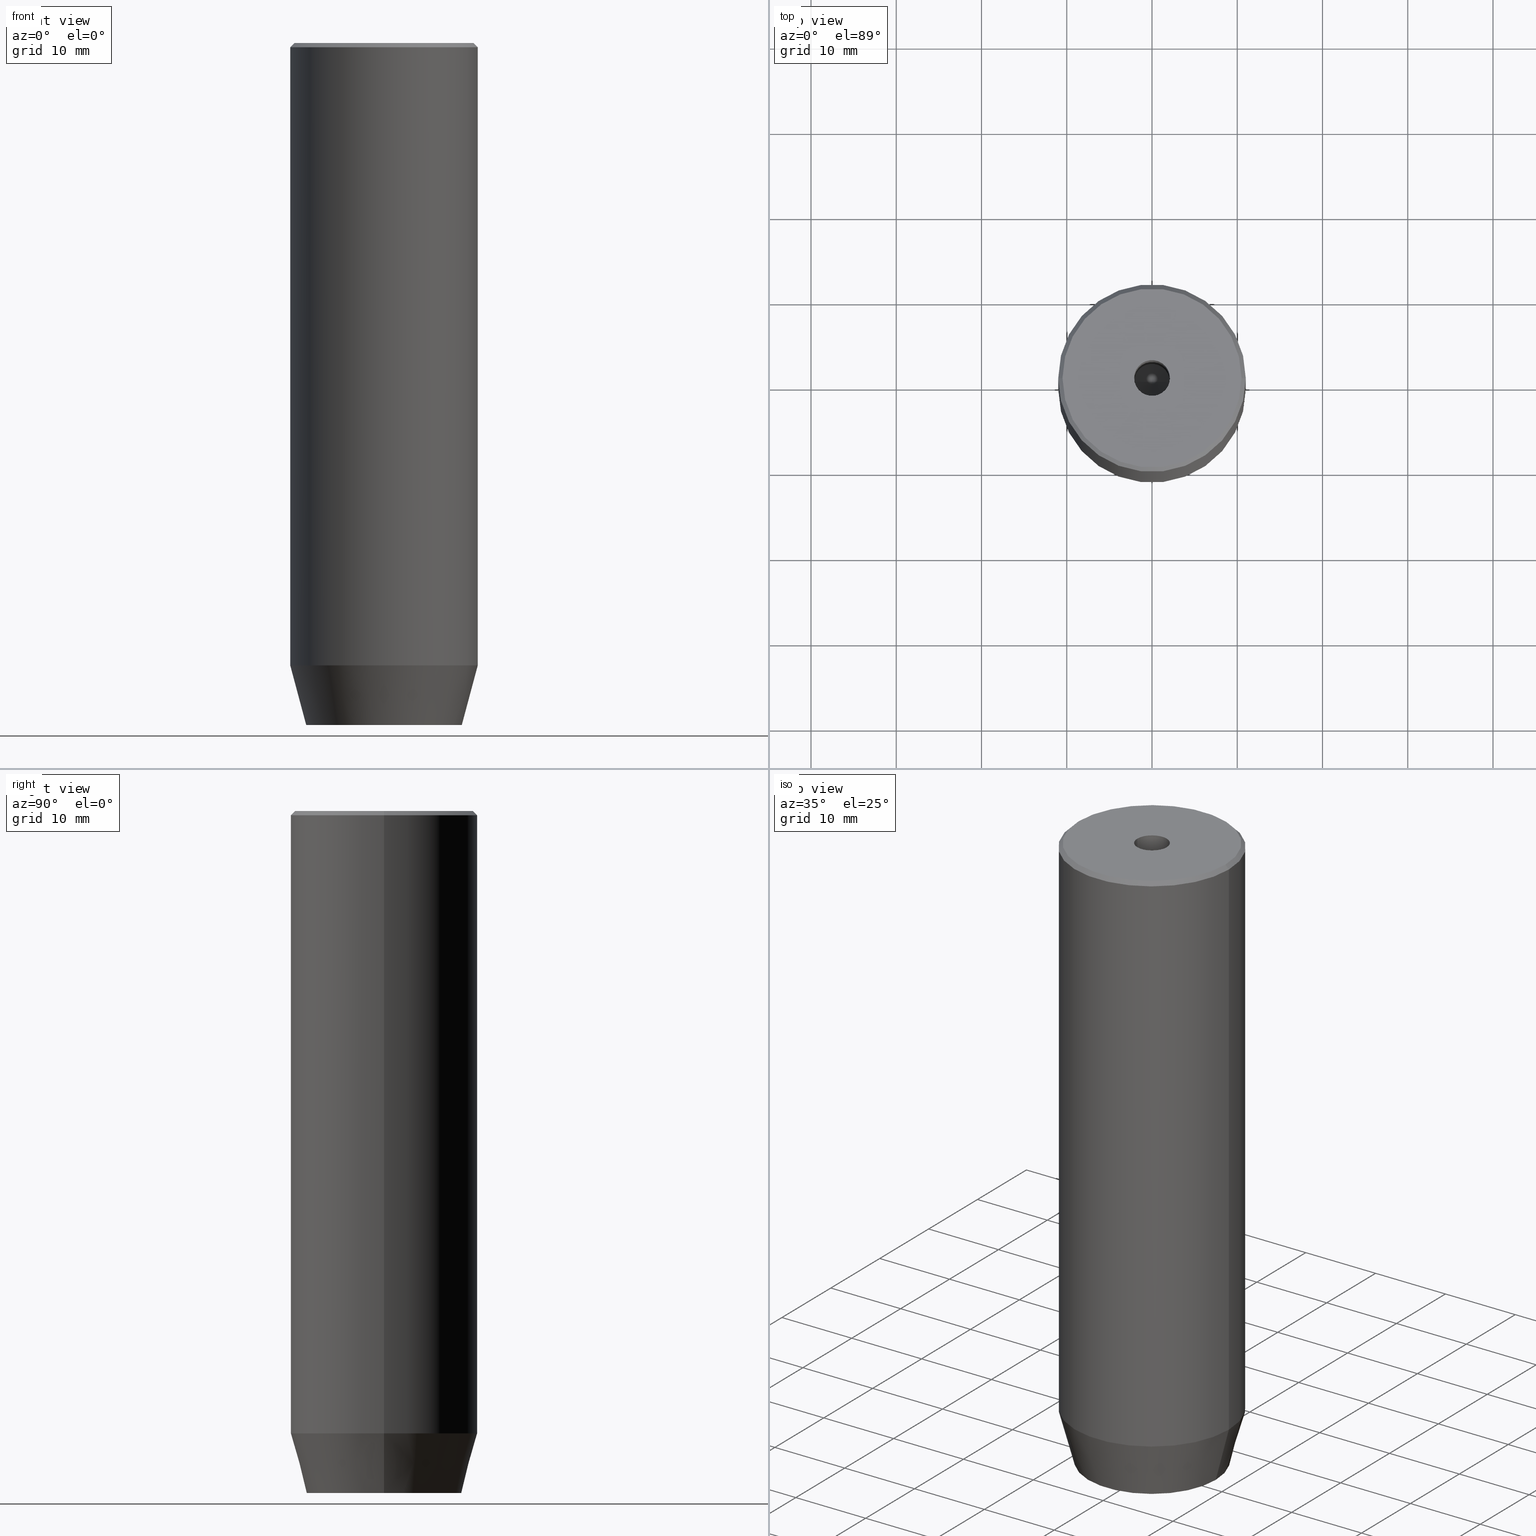
[diagram: canonical four-view strip — front | top / right | iso, engineering-drawing reading convention]
A machine part, canonical four-view strip (front | top / right | iso — engineering-drawing reading convention). The complete STEP part file that produces these views, byte-faithful:
ISO-10303-21;
HEADER;
FILE_DESCRIPTION (( 'STEP AP203' ),
    '1' );
FILE_NAME ('3adf.STEP',
    '2024-01-02T19:02:19',
    ( '' ),
    ( '' ),
    'SwSTEP 2.0',
    'SolidWorks 2019',
    '' );
FILE_SCHEMA (( 'CONFIG_CONTROL_DESIGN' ));
ENDSEC;

DATA;
#1 = ORIENTED_EDGE ( 'NONE', *, *, #334, .F. ) ;
#2 = CARTESIAN_POINT ( 'NONE',  ( -10.50000000000000178, 0.000000000000000000, 0.000000000000000000 ) ) ;
#3 = ORIENTED_EDGE ( 'NONE', *, *, #281, .T. ) ;
#4 = LINE ( 'NONE', #180, #386 ) ;
#5 = CC_DESIGN_DATE_AND_TIME_ASSIGNMENT ( #30, #352, ( #454 ) ) ;
#6 = PLANE ( 'NONE',  #464 ) ;
#7 = CARTESIAN_POINT ( 'NONE',  ( 9.124355652982137244, 0.000000000000000000, -80.00000000000001421 ) ) ;
#8 = DIRECTION ( 'NONE',  ( 0.2588190451025209060, 0.000000000000000000, 0.9659258262890682012 ) ) ;
#9 = AXIS2_PLACEMENT_3D ( 'NONE', #279, #333, #516 ) ;
#10 = DIRECTION ( 'NONE',  ( 1.000000000000000000, 0.000000000000000000, 0.000000000000000000 ) ) ;
#11 = ORIENTED_EDGE ( 'NONE', *, *, #204, .F. ) ;
#12 = CARTESIAN_POINT ( 'NONE',  ( 2.099999999999998757, 0.000000000000000000, -1.990051048614449116E-16 ) ) ;
#13 = ADVANCED_FACE ( 'NONE', ( #119 ), #336, .F. ) ;
#14 = EDGE_CURVE ( 'NONE', #158, #245, #70, .T. ) ;
#15 = CARTESIAN_POINT ( 'NONE',  ( 2.000000000000000444, 3.464101615137754386, -77.20000000000001705 ) ) ;
#16 = FACE_OUTER_BOUND ( 'NONE', #358, .T. ) ;
#17 = VERTEX_POINT ( 'NONE', #396 ) ;
#18 = FACE_OUTER_BOUND ( 'NONE', #342, .T. ) ;
#19 = APPLICATION_PROTOCOL_DEFINITION ( 'international standard', 'config_control_design', 1994, #404 ) ;
#20 = DIRECTION ( 'NONE',  ( -0.000000000000000000, -0.000000000000000000, -1.000000000000000000 ) ) ;
#21 = DIRECTION ( 'NONE',  ( -0.000000000000000000, -0.000000000000000000, 1.000000000000000000 ) ) ;
#22 = EDGE_CURVE ( 'NONE', #160, #135, #353, .T. ) ;
#23 = COORDINATED_UNIVERSAL_TIME_OFFSET ( 1, 0, .AHEAD. ) ;
#24 = ORIENTED_EDGE ( 'NONE', *, *, #563, .F. ) ;
#25 = AXIS2_PLACEMENT_3D ( 'NONE', #275, #90, #215 ) ;
#26 = EDGE_LOOP ( 'NONE', ( #503, #431, #478, #232, #529, #328 ) ) ;
#27 = DATE_TIME_ROLE ( 'creation_date' ) ;
#28 = EDGE_LOOP ( 'NONE', ( #35, #32, #303, #147 ) ) ;
#29 = VERTEX_POINT ( 'NONE', #75 ) ;
#30 = DATE_AND_TIME ( #343, #491 ) ;
#31 = CIRCLE ( 'NONE', #217, 2.099999999999998757 ) ;
#32 = ORIENTED_EDGE ( 'NONE', *, *, #488, .F. ) ;
#33 = CC_DESIGN_APPROVAL ( #266, ( #249 ) ) ;
#34 = CARTESIAN_POINT ( 'NONE',  ( 0.000000000000000000, 0.000000000000000000, 0.000000000000000000 ) ) ;
#35 = ORIENTED_EDGE ( 'NONE', *, *, #253, .T. ) ;
#36 = CARTESIAN_POINT ( 'NONE',  ( 0.000000000000000000, 0.000000000000000000, -0.4999999999999935052 ) ) ;
#37 = CYLINDRICAL_SURFACE ( 'NONE', #292, 11.00000000000000000 ) ;
#38 = CARTESIAN_POINT ( 'NONE',  ( 0.000000000000000000, 0.000000000000000000, 0.000000000000000000 ) ) ;
#39 = CARTESIAN_POINT ( 'NONE',  ( 2.099999999999995648, 0.000000000000000000, -25.00000000000000000 ) ) ;
#40 = ADVANCED_FACE ( 'NONE', ( #41 ), #177, .F. ) ;
#41 = FACE_OUTER_BOUND ( 'NONE', #382, .T. ) ;
#42 = LOCAL_TIME ( 20, 2, 19.00000000000000000, #519 ) ;
#43 = DIRECTION ( 'NONE',  ( -0.000000000000000000, -0.000000000000000000, 1.000000000000000000 ) ) ;
#44 = EDGE_CURVE ( 'NONE', #545, #187, #167, .T. ) ;
#45 = CARTESIAN_POINT ( 'NONE',  ( 2.099999999999995648, 0.000000000000000000, -25.00000000000000000 ) ) ;
#46 = ORIENTED_EDGE ( 'NONE', *, *, #357, .T. ) ;
#47 = DIRECTION ( 'NONE',  ( -0.7071067811865500152, 0.000000000000000000, -0.7071067811865451302 ) ) ;
#48 = DIRECTION ( 'NONE',  ( -0.8660254037844384856, 0.5000000000000002220, 0.000000000000000000 ) ) ;
#49 = EDGE_LOOP ( 'NONE', ( #24, #195, #154, #309 ) ) ;
#50 = DIRECTION ( 'NONE',  ( -0.000000000000000000, -0.000000000000000000, 1.000000000000000000 ) ) ;
#51 =( NAMED_UNIT ( * ) SI_UNIT ( $, .STERADIAN. ) SOLID_ANGLE_UNIT ( ) );
#52 = AXIS2_PLACEMENT_3D ( 'NONE', #224, #43, #500 ) ;
#53 = LINE ( 'NONE', #230, #360 ) ;
#54 = AXIS2_PLACEMENT_3D ( 'NONE', #522, #480, #369 ) ;
#55 = CARTESIAN_POINT ( 'NONE',  ( 0.000000000000000000, 0.000000000000000000, 0.000000000000000000 ) ) ;
#56 = DIRECTION ( 'NONE',  ( 1.000000000000000000, 0.000000000000000000, 0.000000000000000000 ) ) ;
#57 = ORIENTED_EDGE ( 'NONE', *, *, #450, .F. ) ;
#58 = DIRECTION ( 'NONE',  ( -0.000000000000000000, -0.000000000000000000, 1.000000000000000000 ) ) ;
#59 = EDGE_CURVE ( 'NONE', #158, #295, #98, .T. ) ;
#60 = DIRECTION ( 'NONE',  ( -0.000000000000000000, -0.000000000000000000, 1.000000000000000000 ) ) ;
#61 = AXIS2_PLACEMENT_3D ( 'NONE', #242, #60, #558 ) ;
#62 = EDGE_CURVE ( 'NONE', #418, #158, #344, .T. ) ;
#63 = ORIENTED_EDGE ( 'NONE', *, *, #471, .F. ) ;
#64 = ORIENTED_EDGE ( 'NONE', *, *, #79, .F. ) ;
#65 = ORIENTED_EDGE ( 'NONE', *, *, #379, .T. ) ;
#66 = ADVANCED_FACE ( 'NONE', ( #494 ), #206, .T. ) ;
#67 = VECTOR ( 'NONE', #20, 1000.000000000000000 ) ;
#68 = LOCAL_TIME ( 20, 2, 19.00000000000000000, #23 ) ;
#69 = AXIS2_PLACEMENT_3D ( 'NONE', #463, #546, #314 ) ;
#70 = LINE ( 'NONE', #399, #581 ) ;
#71 = PLANE ( 'NONE',  #585 ) ;
#72 = ORIENTED_EDGE ( 'NONE', *, *, #471, .T. ) ;
#73 = EDGE_LOOP ( 'NONE', ( #374, #184, #526, #86 ) ) ;
#74 = EDGE_CURVE ( 'NONE', #160, #545, #442, .T. ) ;
#75 = CARTESIAN_POINT ( 'NONE',  ( -11.00000000000000000, 1.347111479062088405E-15, -0.4999999999999935052 ) ) ;
#76 = SHAPE_DEFINITION_REPRESENTATION ( #346, #489 ) ;
#77 = LINE ( 'NONE', #540, #120 ) ;
#78 = CARTESIAN_POINT ( 'NONE',  ( -2.000000000000000000, 3.464101615137754830, -77.20000000000001705 ) ) ;
#79 = EDGE_CURVE ( 'NONE', #521, #411, #322, .T. ) ;
#80 = VERTEX_POINT ( 'NONE', #368 ) ;
#81 = CARTESIAN_POINT ( 'NONE',  ( 2.000000000000000888, -3.464101615137754386, -77.20000000000001705 ) ) ;
#82 = EDGE_CURVE ( 'NONE', #561, #579, #96, .T. ) ;
#83 = DIRECTION ( 'NONE',  ( -0.000000000000000000, -0.000000000000000000, 1.000000000000000000 ) ) ;
#84 = VECTOR ( 'NONE', #47, 1000.000000000000114 ) ;
#85 = VECTOR ( 'NONE', #355, 1000.000000000000000 ) ;
#86 = ORIENTED_EDGE ( 'NONE', *, *, #14, .F. ) ;
#87 = PLANE ( 'NONE',  #25 ) ;
#88 = DIRECTION ( 'NONE',  ( -0.000000000000000000, -0.000000000000000000, 1.000000000000000000 ) ) ;
#89 = VERTEX_POINT ( 'NONE', #287 ) ;
#90 = DIRECTION ( 'NONE',  ( 0.5000000000000001110, 0.8660254037844385966, -0.000000000000000000 ) ) ;
#91 = LINE ( 'NONE', #325, #302 ) ;
#92 = CARTESIAN_POINT ( 'NONE',  ( -11.00000000000000000, 1.347111479062088405E-15, 0.000000000000000000 ) ) ;
#93 = ORIENTED_EDGE ( 'NONE', *, *, #281, .F. ) ;
#94 = CARTESIAN_POINT ( 'NONE',  ( 0.000000000000000000, 0.000000000000000000, -80.00000000000001421 ) ) ;
#95 = DIRECTION ( 'NONE',  ( 0.8660254037844385966, -0.5000000000000001110, 0.000000000000000000 ) ) ;
#96 = LINE ( 'NONE', #101, #248 ) ;
#97 = ORIENTED_EDGE ( 'NONE', *, *, #493, .T. ) ;
#98 = CIRCLE ( 'NONE', #564, 2.099999999999995648 ) ;
#99 = CONICAL_SURFACE ( 'NONE', #388, 2.099999999999995648, 1.029744258676651647 ) ;
#100 = APPROVAL_DATE_TIME ( #413, #455 ) ;
#101 = CARTESIAN_POINT ( 'NONE',  ( 4.000000000000000000, 0.000000000000000000, -77.20000000000001705 ) ) ;
#102 =( LENGTH_UNIT ( ) NAMED_UNIT ( * ) SI_UNIT ( .MILLI., .METRE. ) );
#103 = CARTESIAN_POINT ( 'NONE',  ( 10.50000000000000178, 1.285879139104721028E-15, 0.000000000000000000 ) ) ;
#104 = ORIENTED_EDGE ( 'NONE', *, *, #289, .T. ) ;
#105 = CARTESIAN_POINT ( 'NONE',  ( 0.000000000000000000, 0.000000000000000000, 0.000000000000000000 ) ) ;
#106 = ADVANCED_FACE ( 'NONE', ( #191 ), #486, .T. ) ;
#107 = DIRECTION ( 'NONE',  ( -1.000000000000000000, 0.000000000000000000, 0.000000000000000000 ) ) ;
#108 = DIRECTION ( 'NONE',  ( 1.000000000000000000, 0.000000000000000000, 0.000000000000000000 ) ) ;
#109 = VECTOR ( 'NONE', #235, 1000.000000000000000 ) ;
#110 = CALENDAR_DATE ( 2024, 2, 1 ) ;
#111 = ORIENTED_EDGE ( 'NONE', *, *, #449, .F. ) ;
#112 = CARTESIAN_POINT ( 'NONE',  ( 11.00000000000000000, 0.000000000000000000, -0.4999999999999935052 ) ) ;
#113 = PERSON_AND_ORGANIZATION ( #470, #327 ) ;
#114 = EDGE_CURVE ( 'NONE', #164, #29, #414, .T. ) ;
#115 = ADVANCED_FACE ( 'NONE', ( #16 ), #189, .F. ) ;
#116 = DIRECTION ( 'NONE',  ( 1.000000000000000000, 0.000000000000000000, 0.000000000000000000 ) ) ;
#117 = PERSON_AND_ORGANIZATION ( #470, #327 ) ;
#118 = PRODUCT ( '3adf', '3adf', '', ( #151 ) ) ;
#119 = FACE_OUTER_BOUND ( 'NONE', #331, .T. ) ;
#120 = VECTOR ( 'NONE', #8, 1000.000000000000000 ) ;
#121 = ORIENTED_EDGE ( 'NONE', *, *, #320, .T. ) ;
#122 = EDGE_CURVE ( 'NONE', #428, #164, #128, .T. ) ;
#123 = DIRECTION ( 'NONE',  ( -0.8660254037844385966, -0.4999999999999999445, 0.000000000000000000 ) ) ;
#124 = ORIENTED_EDGE ( 'NONE', *, *, #253, .F. ) ;
#125 = ADVANCED_FACE ( 'NONE', ( #363, #237 ), #6, .T. ) ;
#126 = DIRECTION ( 'NONE',  ( 0.8571673007021108903, 0.000000000000000000, 0.5150380749100565980 ) ) ;
#127 = DIRECTION ( 'NONE',  ( 1.000000000000000000, 0.000000000000000000, 0.000000000000000000 ) ) ;
#128 = CIRCLE ( 'NONE', #61, 11.00000000000000000 ) ;
#129 = APPROVAL_PERSON_ORGANIZATION ( #337, #266, #426 ) ;
#130 = DIRECTION ( 'NONE',  ( 0.5000000000000003331, -0.8660254037844385966, 0.000000000000000000 ) ) ;
#131 = CARTESIAN_POINT ( 'NONE',  ( 4.000000000000000000, -2.309401076758502480, -80.00000000000001421 ) ) ;
#132 = DIRECTION ( 'NONE',  ( -0.000000000000000000, -0.000000000000000000, -1.000000000000000000 ) ) ;
#133 = EDGE_LOOP ( 'NONE', ( #401, #11 ) ) ;
#134 = FACE_OUTER_BOUND ( 'NONE', #73, .T. ) ;
#135 = VERTEX_POINT ( 'NONE', #277 ) ;
#136 = FACE_OUTER_BOUND ( 'NONE', #375, .T. ) ;
#137 = CC_DESIGN_DATE_AND_TIME_ASSIGNMENT ( #293, #27, ( #236 ) ) ;
#138 = CARTESIAN_POINT ( 'NONE',  ( -2.000000000000000000, 3.464101615137754830, -80.00000000000001421 ) ) ;
#139 = ORIENTED_EDGE ( 'NONE', *, *, #225, .T. ) ;
#140 = FACE_OUTER_BOUND ( 'NONE', #28, .T. ) ;
#141 = CARTESIAN_POINT ( 'NONE',  ( 4.000000000000000000, 2.309401076758503368, -80.00000000000001421 ) ) ;
#142 = LINE ( 'NONE', #446, #171 ) ;
#143 = CARTESIAN_POINT ( 'NONE',  ( -2.099999999999996980, 2.571758278209438013E-16, 0.000000000000000000 ) ) ;
#144 = LINE ( 'NONE', #150, #109 ) ;
#145 = EDGE_LOOP ( 'NONE', ( #238, #196, #298 ) ) ;
#146 = CARTESIAN_POINT ( 'NONE',  ( -4.000000000000000000, 0.000000000000000000, -77.20000000000001705 ) ) ;
#147 = ORIENTED_EDGE ( 'NONE', *, *, #421, .T. ) ;
#148 = VECTOR ( 'NONE', #537, 1000.000000000000114 ) ;
#149 = VECTOR ( 'NONE', #553, 1000.000000000000114 ) ;
#150 = CARTESIAN_POINT ( 'NONE',  ( 11.00000000000000000, 0.000000000000000000, 0.000000000000000000 ) ) ;
#151 = MECHANICAL_CONTEXT ( 'NONE', #404, 'mechanical' ) ;
#152 = VERTEX_POINT ( 'NONE', #228 ) ;
#153 = CC_DESIGN_PERSON_AND_ORGANIZATION_ASSIGNMENT ( #113, #571, ( #249 ) ) ;
#154 = ORIENTED_EDGE ( 'NONE', *, *, #244, .T. ) ;
#155 = CARTESIAN_POINT ( 'NONE',  ( -6.432287649943602629E-15, 0.000000000000000000, -26.26180729995787999 ) ) ;
#156 = VECTOR ( 'NONE', #443, 1000.000000000000000 ) ;
#157 = APPROVAL_DATE_TIME ( #376, #266 ) ;
#158 = VERTEX_POINT ( 'NONE', #39 ) ;
#159 = ORIENTED_EDGE ( 'NONE', *, *, #354, .T. ) ;
#160 = VERTEX_POINT ( 'NONE', #492 ) ;
#161 = FACE_OUTER_BOUND ( 'NONE', #317, .T. ) ;
#162 = AXIS2_PLACEMENT_3D ( 'NONE', #387, #532, #116 ) ;
#163 = VECTOR ( 'NONE', #48, 1000.000000000000114 ) ;
#164 = VERTEX_POINT ( 'NONE', #391 ) ;
#165 = DIRECTION ( 'NONE',  ( -0.5000000000000000000, 0.8660254037844387076, 0.000000000000000000 ) ) ;
#166 = DIRECTION ( 'NONE',  ( -0.000000000000000000, -0.000000000000000000, 1.000000000000000000 ) ) ;
#167 = LINE ( 'NONE', #138, #439 ) ;
#168 = ORIENTED_EDGE ( 'NONE', *, *, #273, .T. ) ;
#169 = ADVANCED_FACE ( 'NONE', ( #161 ), #71, .F. ) ;
#170 = CLOSED_SHELL ( 'NONE', ( #385, #419, #198, #106, #427, #125, #373, #462, #202, #66, #169, #115, #13, #40, #436, #294, #468, #527, #307 ) ) ;
#171 = VECTOR ( 'NONE', #132, 1000.000000000000000 ) ;
#172 = FACE_OUTER_BOUND ( 'NONE', #145, .T. ) ;
#173 = ORIENTED_EDGE ( 'NONE', *, *, #547, .T. ) ;
#174 = CYLINDRICAL_SURFACE ( 'NONE', #398, 2.099999999999996980 ) ;
#175 = DIRECTION ( 'NONE',  ( -0.000000000000000000, -0.000000000000000000, 1.000000000000000000 ) ) ;
#176 = DIRECTION ( 'NONE',  ( -1.000000000000000000, 0.000000000000000000, -0.000000000000000000 ) ) ;
#177 = PLANE ( 'NONE',  #326 ) ;
#178 = LINE ( 'NONE', #312, #156 ) ;
#179 = ORIENTED_EDGE ( 'NONE', *, *, #14, .T. ) ;
#180 = CARTESIAN_POINT ( 'NONE',  ( 4.000000000000000000, -2.309401076758502480, -77.20000000000001705 ) ) ;
#181 = CARTESIAN_POINT ( 'NONE',  ( 0.000000000000000000, 9.124355652982137244, -80.00000000000001421 ) ) ;
#182 = CONICAL_SURFACE ( 'NONE', #162, 11.00000000000000000, 0.2617993877991495744 ) ;
#183 = CIRCLE ( 'NONE', #582, 10.50000000000000178 ) ;
#184 = ORIENTED_EDGE ( 'NONE', *, *, #334, .T. ) ;
#185 = DIRECTION ( 'NONE',  ( 0.8660254037844385966, -0.5000000000000001110, 0.000000000000000000 ) ) ;
#186 = CARTESIAN_POINT ( 'NONE',  ( 4.000000000000000000, 2.309401076758503368, -77.20000000000001705 ) ) ;
#187 = VERTEX_POINT ( 'NONE', #383 ) ;
#188 = FACE_OUTER_BOUND ( 'NONE', #323, .T. ) ;
#189 = PLANE ( 'NONE',  #216 ) ;
#190 = CARTESIAN_POINT ( 'NONE',  ( -2.000000000000000888, -3.464101615137754386, -80.00000000000001421 ) ) ;
#191 = FACE_OUTER_BOUND ( 'NONE', #200, .T. ) ;
#192 = CIRCLE ( 'NONE', #573, 2.099999999999998757 ) ;
#193 = CC_DESIGN_SECURITY_CLASSIFICATION ( #454, ( #249 ) ) ;
#194 = LINE ( 'NONE', #15, #378 ) ;
#195 = ORIENTED_EDGE ( 'NONE', *, *, #241, .T. ) ;
#196 = ORIENTED_EDGE ( 'NONE', *, *, #62, .T. ) ;
#197 = CONICAL_SURFACE ( 'NONE', #301, 10.50000000000000178, 0.7853981633974517207 ) ;
#198 = ADVANCED_FACE ( 'NONE', ( #255 ), #197, .T. ) ;
#199 = VECTOR ( 'NONE', #420, 1000.000000000000000 ) ;
#200 = EDGE_LOOP ( 'NONE', ( #46, #425, #583, #205 ) ) ;
#201 = LINE ( 'NONE', #381, #535 ) ;
#202 = ADVANCED_FACE ( 'NONE', ( #440 ), #182, .T. ) ;
#203 = ORIENTED_EDGE ( 'NONE', *, *, #44, .F. ) ;
#204 = EDGE_CURVE ( 'NONE', #377, #245, #31, .T. ) ;
#205 = ORIENTED_EDGE ( 'NONE', *, *, #244, .F. ) ;
#206 = CONICAL_SURFACE ( 'NONE', #306, 10.50000000000000178, 0.7853981633974517207 ) ;
#207 = VECTOR ( 'NONE', #560, 1000.000000000000000 ) ;
#208 = ORIENTED_EDGE ( 'NONE', *, *, #79, .T. ) ;
#209 = DIRECTION ( 'NONE',  ( 0.8660254037844387076, 0.5000000000000001110, 0.000000000000000000 ) ) ;
#210 = DIRECTION ( 'NONE',  ( -0.000000000000000000, -0.000000000000000000, 1.000000000000000000 ) ) ;
#211 = ORIENTED_EDGE ( 'NONE', *, *, #421, .F. ) ;
#212 = DIRECTION ( 'NONE',  ( 0.000000000000000000, 0.000000000000000000, -1.000000000000000000 ) ) ;
#213 = EDGE_CURVE ( 'NONE', #411, #29, #341, .T. ) ;
#214 = CARTESIAN_POINT ( 'NONE',  ( 10.50000000000000178, 1.316495309083404815E-15, 0.000000000000000000 ) ) ;
#215 = DIRECTION ( 'NONE',  ( -0.8660254037844385966, 0.5000000000000001110, 0.000000000000000000 ) ) ;
#216 = AXIS2_PLACEMENT_3D ( 'NONE', #146, #107, #285 ) ;
#217 = AXIS2_PLACEMENT_3D ( 'NONE', #576, #166, #127 ) ;
#218 = VERTEX_POINT ( 'NONE', #433 ) ;
#219 = DIRECTION ( 'NONE',  ( -0.000000000000000000, -0.000000000000000000, -1.000000000000000000 ) ) ;
#220 = EDGE_CURVE ( 'NONE', #89, #545, #201, .T. ) ;
#221 = EDGE_CURVE ( 'NONE', #579, #257, #356, .T. ) ;
#222 = DIRECTION ( 'NONE',  ( 1.000000000000000000, 0.000000000000000000, 0.000000000000000000 ) ) ;
#223 = ORIENTED_EDGE ( 'NONE', *, *, #62, .F. ) ;
#224 = CARTESIAN_POINT ( 'NONE',  ( 0.000000000000000000, 0.000000000000000000, -25.00000000000000000 ) ) ;
#225 = EDGE_CURVE ( 'NONE', #295, #158, #251, .T. ) ;
#226 = CARTESIAN_POINT ( 'NONE',  ( 0.000000000000000000, 0.000000000000000000, -77.20000000000001705 ) ) ;
#227 = DIRECTION ( 'NONE',  ( -0.000000000000000000, -0.000000000000000000, 1.000000000000000000 ) ) ;
#228 = CARTESIAN_POINT ( 'NONE',  ( -10.50000000000000178, 0.000000000000000000, 0.000000000000000000 ) ) ;
#229 = CC_DESIGN_APPROVAL ( #497, ( #454 ) ) ;
#230 = CARTESIAN_POINT ( 'NONE',  ( 2.000000000000000888, -3.464101615137754386, -80.00000000000001421 ) ) ;
#231 = CALENDAR_DATE ( 2024, 2, 1 ) ;
#232 = ORIENTED_EDGE ( 'NONE', *, *, #221, .T. ) ;
#233 = APPROVAL_ROLE ( '' ) ;
#234 = FACE_OUTER_BOUND ( 'NONE', #247, .T. ) ;
#235 = DIRECTION ( 'NONE',  ( -0.000000000000000000, -0.000000000000000000, 1.000000000000000000 ) ) ;
#236 = PRODUCT_DEFINITION ( 'NEZN�M�', '', #249, #332 ) ;
#237 = FACE_OUTER_BOUND ( 'NONE', #437, .T. ) ;
#238 = ORIENTED_EDGE ( 'NONE', *, *, #547, .F. ) ;
#239 = DIRECTION ( 'NONE',  ( 1.000000000000000000, 0.000000000000000000, 0.000000000000000000 ) ) ;
#240 = APPLICATION_PROTOCOL_DEFINITION ( 'international standard', 'config_control_design', 1994, #243 ) ;
#241 = EDGE_CURVE ( 'NONE', #218, #506, #484, .T. ) ;
#242 = CARTESIAN_POINT ( 'NONE',  ( 0.000000000000000000, 0.000000000000000000, -73.00000000000001421 ) ) ;
#243 = APPLICATION_CONTEXT ( 'configuration controlled 3d designs of mechanical parts and assemblies' ) ;
#244 = EDGE_CURVE ( 'NONE', #506, #428, #77, .T. ) ;
#245 = VERTEX_POINT ( 'NONE', #12 ) ;
#246 = CARTESIAN_POINT ( 'NONE',  ( 11.00000000000000000, 0.000000000000000000, -73.00000000000001421 ) ) ;
#247 = EDGE_LOOP ( 'NONE', ( #223, #173, #139 ) ) ;
#248 = VECTOR ( 'NONE', #476, 1000.000000000000000 ) ;
#249 = PRODUCT_DEFINITION_FORMATION_WITH_SPECIFIED_SOURCE ( 'LIBOVOLN�', '', #118, .NOT_KNOWN. ) ;
#250 = SECURITY_CLASSIFICATION_LEVEL ( 'unclassified' ) ;
#251 = CIRCLE ( 'NONE', #52, 2.099999999999995648 ) ;
#252 = ORIENTED_EDGE ( 'NONE', *, *, #220, .T. ) ;
#253 = EDGE_CURVE ( 'NONE', #187, #554, #265, .T. ) ;
#254 = EDGE_LOOP ( 'NONE', ( #1, #340, #179, #121 ) ) ;
#255 = FACE_OUTER_BOUND ( 'NONE', #438, .T. ) ;
#256 = CC_DESIGN_PERSON_AND_ORGANIZATION_ASSIGNMENT ( #523, #525, ( #249 ) ) ;
#257 = VERTEX_POINT ( 'NONE', #276 ) ;
#258 = DIRECTION ( 'NONE',  ( -1.000000000000000000, 0.000000000000000000, 0.000000000000000000 ) ) ;
#259 = VECTOR ( 'NONE', #472, 1000.000000000000000 ) ;
#260 =( GEOMETRIC_REPRESENTATION_CONTEXT ( 3 ) GLOBAL_UNCERTAINTY_ASSIGNED_CONTEXT ( ( #481 ) ) GLOBAL_UNIT_ASSIGNED_CONTEXT ( ( #102, #417, #51 ) ) REPRESENTATION_CONTEXT ( 'NONE', 'WORKASPACE' ) );
#261 = DIRECTION ( 'NONE',  ( -1.000000000000000000, 0.000000000000000000, 0.000000000000000000 ) ) ;
#262 = MANIFOLD_SOLID_BREP ( 'Vrt�k z�vitn�ku pro M5 z�vit1', #170 ) ;
#263 = CARTESIAN_POINT ( 'NONE',  ( -2.000000000000000888, -3.464101615137754386, -77.20000000000001705 ) ) ;
#264 = VERTEX_POINT ( 'NONE', #131 ) ;
#265 = LINE ( 'NONE', #347, #430 ) ;
#266 = APPROVAL ( #565, 'NEUR�EN�' ) ;
#267 = APPROVAL_ROLE ( '' ) ;
#268 = DIRECTION ( 'NONE',  ( 1.000000000000000000, 0.000000000000000000, 0.000000000000000000 ) ) ;
#269 = CIRCLE ( 'NONE', #422, 9.124355652982137244 ) ;
#270 = DIRECTION ( 'NONE',  ( 1.000000000000000000, 0.000000000000000000, 0.000000000000000000 ) ) ;
#271 = DIRECTION ( 'NONE',  ( 0.000000000000000000, 0.000000000000000000, -1.000000000000000000 ) ) ;
#272 = DIRECTION ( 'NONE',  ( -0.000000000000000000, -0.000000000000000000, 1.000000000000000000 ) ) ;
#273 = EDGE_CURVE ( 'NONE', #29, #411, #329, .T. ) ;
#274 = LINE ( 'NONE', #460, #477 ) ;
#275 = CARTESIAN_POINT ( 'NONE',  ( 2.000000000000000444, 3.464101615137754386, -77.20000000000001705 ) ) ;
#276 = CARTESIAN_POINT ( 'NONE',  ( 4.336808689942017736E-16, -4.618802153517006737, -77.20000000000001705 ) ) ;
#277 = CARTESIAN_POINT ( 'NONE',  ( 0.000000000000000000, 4.618802153517006737, -77.20000000000001705 ) ) ;
#278 = AXIS2_PLACEMENT_3D ( 'NONE', #402, #409, #461 ) ;
#279 = CARTESIAN_POINT ( 'NONE',  ( 0.000000000000000000, 0.000000000000000000, -73.00000000000001421 ) ) ;
#280 = VECTOR ( 'NONE', #557, 1000.000000000000114 ) ;
#281 = EDGE_CURVE ( 'NONE', #17, #89, #496, .T. ) ;
#282 = EDGE_LOOP ( 'NONE', ( #64, #499, #159, #394 ) ) ;
#283 = DIRECTION ( 'NONE',  ( 1.000000000000000000, 0.000000000000000000, -0.000000000000000000 ) ) ;
#284 = PERSON_AND_ORGANIZATION_ROLE ( 'design_owner' ) ;
#285 = DIRECTION ( 'NONE',  ( 0.000000000000000000, 0.000000000000000000, 1.000000000000000000 ) ) ;
#286 = CARTESIAN_POINT ( 'NONE',  ( -4.000000000000000000, 2.309401076758503368, -80.00000000000001421 ) ) ;
#287 = CARTESIAN_POINT ( 'NONE',  ( -4.000000000000000000, -2.309401076758503368, -80.00000000000001421 ) ) ;
#288 = CARTESIAN_POINT ( 'NONE',  ( 0.000000000000000000, 0.000000000000000000, -25.00000000000000000 ) ) ;
#289 = EDGE_CURVE ( 'NONE', #579, #264, #4, .T. ) ;
#290 = ORIENTED_EDGE ( 'NONE', *, *, #44, .T. ) ;
#291 = CIRCLE ( 'NONE', #348, 11.00000000000000000 ) ;
#292 = AXIS2_PLACEMENT_3D ( 'NONE', #549, #88, #222 ) ;
#293 = DATE_AND_TIME ( #110, #42 ) ;
#294 = ADVANCED_FACE ( 'NONE', ( #140 ), #87, .F. ) ;
#295 = VERTEX_POINT ( 'NONE', #448 ) ;
#296 = DIRECTION ( 'NONE',  ( -0.000000000000000000, -0.000000000000000000, 1.000000000000000000 ) ) ;
#297 = CALENDAR_DATE ( 2024, 2, 1 ) ;
#298 = ORIENTED_EDGE ( 'NONE', *, *, #59, .T. ) ;
#299 = PERSON_AND_ORGANIZATION_ROLE ( 'classification_officer' ) ;
#300 = DIRECTION ( 'NONE',  ( -0.5000000000000003331, -0.8660254037844385966, 0.000000000000000000 ) ) ;
#301 = AXIS2_PLACEMENT_3D ( 'NONE', #445, #212, #258 ) ;
#302 = VECTOR ( 'NONE', #465, 1000.000000000000114 ) ;
#303 = ORIENTED_EDGE ( 'NONE', *, *, #586, .F. ) ;
#304 = ORIENTED_EDGE ( 'NONE', *, *, #213, .T. ) ;
#305 = DIRECTION ( 'NONE',  ( 0.000000000000000000, 0.000000000000000000, -1.000000000000000000 ) ) ;
#306 = AXIS2_PLACEMENT_3D ( 'NONE', #392, #305, #261 ) ;
#307 = ADVANCED_FACE ( 'NONE', ( #550 ), #174, .F. ) ;
#308 = LINE ( 'NONE', #263, #163 ) ;
#309 = ORIENTED_EDGE ( 'NONE', *, *, #338, .F. ) ;
#310 = CARTESIAN_POINT ( 'NONE',  ( 0.000000000000000000, 0.000000000000000000, -80.00000000000001421 ) ) ;
#311 = COORDINATED_UNIVERSAL_TIME_OFFSET ( 1, 0, .AHEAD. ) ;
#312 = CARTESIAN_POINT ( 'NONE',  ( 4.000000000000000000, 2.309401076758503368, -77.20000000000001705 ) ) ;
#313 = DIRECTION ( 'NONE',  ( 1.000000000000000000, 0.000000000000000000, 0.000000000000000000 ) ) ;
#314 = DIRECTION ( 'NONE',  ( 1.000000000000000000, 0.000000000000000000, 0.000000000000000000 ) ) ;
#315 = AXIS2_PLACEMENT_3D ( 'NONE', #479, #300, #485 ) ;
#316 = CARTESIAN_POINT ( 'NONE',  ( -4.000000000000000000, 0.000000000000000000, -77.20000000000001705 ) ) ;
#317 = EDGE_LOOP ( 'NONE', ( #290, #211, #365, #574 ) ) ;
#318 = CARTESIAN_POINT ( 'NONE',  ( -4.000000000000000000, -2.309401076758503368, -77.20000000000001705 ) ) ;
#319 = DIRECTION ( 'NONE',  ( 1.000000000000000000, 0.000000000000000000, 0.000000000000000000 ) ) ;
#320 = EDGE_CURVE ( 'NONE', #245, #377, #192, .T. ) ;
#321 = CARTESIAN_POINT ( 'NONE',  ( -11.00000000000000000, 1.347111479062088405E-15, -73.00000000000001421 ) ) ;
#322 = LINE ( 'NONE', #103, #149 ) ;
#323 = EDGE_LOOP ( 'NONE', ( #97, #559, #405, #524 ) ) ;
#324 = CARTESIAN_POINT ( 'NONE',  ( 4.000000000000000000, 0.000000000000000000, -77.20000000000001705 ) ) ;
#325 = CARTESIAN_POINT ( 'NONE',  ( -2.099999999999995648, 2.571758278209436040E-16, -25.00000000000000000 ) ) ;
#326 = AXIS2_PLACEMENT_3D ( 'NONE', #459, #130, #502 ) ;
#327 = ORGANIZATION ( 'NEUR�EN�', 'NEUR�EN�', '' ) ;
#328 = ORIENTED_EDGE ( 'NONE', *, *, #449, .T. ) ;
#329 = CIRCLE ( 'NONE', #278, 11.00000000000000000 ) ;
#330 = LINE ( 'NONE', #190, #280 ) ;
#331 = EDGE_LOOP ( 'NONE', ( #531, #93, #57, #72 ) ) ;
#332 = DESIGN_CONTEXT ( 'detailed design', #243, 'design' ) ;
#333 = DIRECTION ( 'NONE',  ( -0.000000000000000000, -0.000000000000000000, 1.000000000000000000 ) ) ;
#334 = EDGE_CURVE ( 'NONE', #295, #377, #458, .T. ) ;
#335 = CC_DESIGN_PERSON_AND_ORGANIZATION_ASSIGNMENT ( #474, #284, ( #118 ) ) ;
#336 = PLANE ( 'NONE',  #315 ) ;
#337 = PERSON_AND_ORGANIZATION ( #470, #327 ) ;
#338 = EDGE_CURVE ( 'NONE', #164, #428, #291, .T. ) ;
#339 = ORIENTED_EDGE ( 'NONE', *, *, #221, .F. ) ;
#340 = ORIENTED_EDGE ( 'NONE', *, *, #59, .F. ) ;
#341 = CIRCLE ( 'NONE', #370, 11.00000000000000000 ) ;
#342 = EDGE_LOOP ( 'NONE', ( #384, #389, #168, #424 ) ) ;
#343 = CALENDAR_DATE ( 2024, 2, 1 ) ;
#344 = LINE ( 'NONE', #45, #512 ) ;
#345 = CARTESIAN_POINT ( 'NONE',  ( -2.000000000000000000, 3.464101615137754830, -77.20000000000001705 ) ) ;
#346 = PRODUCT_DEFINITION_SHAPE ( 'NONE', 'NONE',  #236 ) ;
#347 = CARTESIAN_POINT ( 'NONE',  ( 2.000000000000000444, 3.464101615137754386, -80.00000000000001421 ) ) ;
#348 = AXIS2_PLACEMENT_3D ( 'NONE', #584, #452, #313 ) ;
#349 = AXIS2_PLACEMENT_3D ( 'NONE', #350, #539, #498 ) ;
#350 = CARTESIAN_POINT ( 'NONE',  ( 0.000000000000000000, 0.000000000000000000, -25.00000000000000000 ) ) ;
#351 = PLANE ( 'NONE',  #69 ) ;
#352 = DATE_TIME_ROLE ( 'classification_date' ) ;
#353 = LINE ( 'NONE', #78, #475 ) ;
#354 = EDGE_CURVE ( 'NONE', #152, #29, #359, .T. ) ;
#355 = DIRECTION ( 'NONE',  ( 0.000000000000000000, 1.000000000000000000, 0.000000000000000000 ) ) ;
#356 = LINE ( 'NONE', #81, #148 ) ;
#357 = EDGE_CURVE ( 'NONE', #506, #218, #269, .T. ) ;
#358 = EDGE_LOOP ( 'NONE', ( #252, #569, #111, #3 ) ) ;
#359 = LINE ( 'NONE', #2, #84 ) ;
#360 = VECTOR ( 'NONE', #412, 1000.000000000000114 ) ;
#361 = COORDINATED_UNIVERSAL_TIME_OFFSET ( 1, 0, .AHEAD. ) ;
#362 = LOCAL_TIME ( 20, 2, 19.00000000000000000, #311 ) ;
#363 = FACE_BOUND ( 'NONE', #444, .T. ) ;
#364 = DIRECTION ( 'NONE',  ( -0.000000000000000000, -0.000000000000000000, -1.000000000000000000 ) ) ;
#365 = ORIENTED_EDGE ( 'NONE', *, *, #22, .F. ) ;
#366 = PLANE ( 'NONE',  #423 ) ;
#367 = PERSON_AND_ORGANIZATION ( #470, #327 ) ;
#368 = CARTESIAN_POINT ( 'NONE',  ( 4.336808689942017736E-16, -4.618802153517006737, -80.00000000000001421 ) ) ;
#369 = DIRECTION ( 'NONE',  ( 1.000000000000000000, 0.000000000000000000, 0.000000000000000000 ) ) ;
#370 = AXIS2_PLACEMENT_3D ( 'NONE', #36, #395, #580 ) ;
#371 = AXIS2_PLACEMENT_3D ( 'NONE', #105, #58, #56 ) ;
#372 = CYLINDRICAL_SURFACE ( 'NONE', #536, 2.099999999999996980 ) ;
#373 = ADVANCED_FACE ( 'NONE', ( #510, #136 ), #351, .T. ) ;
#374 = ORIENTED_EDGE ( 'NONE', *, *, #225, .F. ) ;
#375 = EDGE_LOOP ( 'NONE', ( #473, #517 ) ) ;
#376 = DATE_AND_TIME ( #297, #68 ) ;
#377 = VERTEX_POINT ( 'NONE', #504 ) ;
#378 = VECTOR ( 'NONE', #95, 1000.000000000000000 ) ;
#379 = EDGE_CURVE ( 'NONE', #264, #80, #53, .T. ) ;
#380 = ORIENTED_EDGE ( 'NONE', *, *, #379, .F. ) ;
#381 = CARTESIAN_POINT ( 'NONE',  ( -4.000000000000000000, 0.000000000000000000, -80.00000000000001421 ) ) ;
#382 = EDGE_LOOP ( 'NONE', ( #65, #63, #339, #104 ) ) ;
#383 = CARTESIAN_POINT ( 'NONE',  ( 0.000000000000000000, 4.618802153517006737, -80.00000000000001421 ) ) ;
#384 = ORIENTED_EDGE ( 'NONE', *, *, #122, .T. ) ;
#385 = ADVANCED_FACE ( 'NONE', ( #134 ), #372, .F. ) ;
#386 = VECTOR ( 'NONE', #364, 1000.000000000000000 ) ;
#387 = CARTESIAN_POINT ( 'NONE',  ( 0.000000000000000000, 0.000000000000000000, -73.00000000000001421 ) ) ;
#388 = AXIS2_PLACEMENT_3D ( 'NONE', #288, #21, #108 ) ;
#389 = ORIENTED_EDGE ( 'NONE', *, *, #114, .T. ) ;
#390 = EDGE_CURVE ( 'NONE', #521, #152, #530, .T. ) ;
#391 = CARTESIAN_POINT ( 'NONE',  ( -11.00000000000000000, 1.347111479062088405E-15, -73.00000000000001421 ) ) ;
#392 = CARTESIAN_POINT ( 'NONE',  ( 0.000000000000000000, 0.000000000000000000, 0.000000000000000000 ) ) ;
#393 = DIRECTION ( 'NONE',  ( 1.000000000000000000, 0.000000000000000000, 0.000000000000000000 ) ) ;
#394 = ORIENTED_EDGE ( 'NONE', *, *, #213, .F. ) ;
#395 = DIRECTION ( 'NONE',  ( 0.000000000000000000, 0.000000000000000000, -1.000000000000000000 ) ) ;
#396 = CARTESIAN_POINT ( 'NONE',  ( -4.000000000000000000, -2.309401076758503368, -77.20000000000001705 ) ) ;
#397 = CARTESIAN_POINT ( 'NONE',  ( 0.000000000000000000, 0.000000000000000000, -1.990051048614449116E-16 ) ) ;
#398 = AXIS2_PLACEMENT_3D ( 'NONE', #38, #50, #507 ) ;
#399 = CARTESIAN_POINT ( 'NONE',  ( 2.099999999999996980, 0.000000000000000000, 0.000000000000000000 ) ) ;
#400 = FACE_OUTER_BOUND ( 'NONE', #26, .T. ) ;
#401 = ORIENTED_EDGE ( 'NONE', *, *, #320, .F. ) ;
#402 = CARTESIAN_POINT ( 'NONE',  ( 0.000000000000000000, 0.000000000000000000, -0.4999999999999935052 ) ) ;
#403 = FACE_OUTER_BOUND ( 'NONE', #542, .T. ) ;
#404 = APPLICATION_CONTEXT ( 'configuration controlled 3d designs of mechanical parts and assemblies' ) ;
#405 = ORIENTED_EDGE ( 'NONE', *, *, #82, .F. ) ;
#406 = DIRECTION ( 'NONE',  ( 1.000000000000000000, 0.000000000000000000, 0.000000000000000000 ) ) ;
#407 = CARTESIAN_POINT ( 'NONE',  ( 0.000000000000000000, 0.000000000000000000, -25.00000000000000000 ) ) ;
#408 = DIRECTION ( 'NONE',  ( 0.000000000000000000, -1.000000000000000000, 0.000000000000000000 ) ) ;
#409 = DIRECTION ( 'NONE',  ( 0.000000000000000000, 0.000000000000000000, -1.000000000000000000 ) ) ;
#410 = LINE ( 'NONE', #321, #199 ) ;
#411 = VERTEX_POINT ( 'NONE', #112 ) ;
#412 = DIRECTION ( 'NONE',  ( -0.8660254037844384856, -0.5000000000000002220, 0.000000000000000000 ) ) ;
#413 = DATE_AND_TIME ( #231, #513 ) ;
#414 = LINE ( 'NONE', #92, #259 ) ;
#415 = ORIENTED_EDGE ( 'NONE', *, *, #241, .F. ) ;
#416 = LINE ( 'NONE', #316, #85 ) ;
#417 =( NAMED_UNIT ( * ) PLANE_ANGLE_UNIT ( ) SI_UNIT ( $, .RADIAN. ) );
#418 = VERTEX_POINT ( 'NONE', #155 ) ;
#419 = ADVANCED_FACE ( 'NONE', ( #234 ), #99, .F. ) ;
#420 = DIRECTION ( 'NONE',  ( -0.2588190451025209060, 3.169619151431766790E-17, 0.9659258262890682012 ) ) ;
#421 = EDGE_CURVE ( 'NONE', #135, #187, #429, .T. ) ;
#422 = AXIS2_PLACEMENT_3D ( 'NONE', #94, #175, #319 ) ;
#423 = AXIS2_PLACEMENT_3D ( 'NONE', #324, #283, #467 ) ;
#424 = ORIENTED_EDGE ( 'NONE', *, *, #572, .F. ) ;
#425 = ORIENTED_EDGE ( 'NONE', *, *, #563, .T. ) ;
#426 = APPROVAL_ROLE ( '' ) ;
#427 = ADVANCED_FACE ( 'NONE', ( #18 ), #518, .T. ) ;
#428 = VERTEX_POINT ( 'NONE', #246 ) ;
#429 = LINE ( 'NONE', #555, #207 ) ;
#430 = VECTOR ( 'NONE', #185, 1000.000000000000000 ) ;
#431 = ORIENTED_EDGE ( 'NONE', *, *, #586, .T. ) ;
#432 = CC_DESIGN_APPROVAL ( #455, ( #236 ) ) ;
#433 = CARTESIAN_POINT ( 'NONE',  ( -9.124355652982137244, 1.232261386766375901E-15, -80.00000000000001421 ) ) ;
#434 = COORDINATED_UNIVERSAL_TIME_OFFSET ( 1, 0, .AHEAD. ) ;
#435 = ORIENTED_EDGE ( 'NONE', *, *, #273, .F. ) ;
#436 = ADVANCED_FACE ( 'NONE', ( #188 ), #366, .F. ) ;
#437 = EDGE_LOOP ( 'NONE', ( #447, #415 ) ) ;
#438 = EDGE_LOOP ( 'NONE', ( #482, #208, #435, #567 ) ) ;
#439 = VECTOR ( 'NONE', #209, 999.9999999999998863 ) ;
#440 = FACE_OUTER_BOUND ( 'NONE', #49, .T. ) ;
#441 = APPROVAL_PERSON_ORGANIZATION ( #367, #455, #233 ) ;
#442 = LINE ( 'NONE', #578, #67 ) ;
#443 = DIRECTION ( 'NONE',  ( -0.000000000000000000, -0.000000000000000000, -1.000000000000000000 ) ) ;
#444 = EDGE_LOOP ( 'NONE', ( #203, #457, #515, #380, #487, #124 ) ) ;
#445 = CARTESIAN_POINT ( 'NONE',  ( 0.000000000000000000, 0.000000000000000000, 0.000000000000000000 ) ) ;
#446 = CARTESIAN_POINT ( 'NONE',  ( 4.336808689942017736E-16, -4.618802153517006737, -77.20000000000001705 ) ) ;
#447 = ORIENTED_EDGE ( 'NONE', *, *, #357, .F. ) ;
#448 = CARTESIAN_POINT ( 'NONE',  ( -2.099999999999995648, 2.571758278209436040E-16, -25.00000000000000000 ) ) ;
#449 = EDGE_CURVE ( 'NONE', #17, #160, #416, .T. ) ;
#450 = EDGE_CURVE ( 'NONE', #257, #17, #308, .T. ) ;
#451 = APPROVAL_STATUS ( 'not_yet_approved' ) ;
#452 = DIRECTION ( 'NONE',  ( -0.000000000000000000, -0.000000000000000000, 1.000000000000000000 ) ) ;
#453 = VECTOR ( 'NONE', #219, 1000.000000000000000 ) ;
#454 = SECURITY_CLASSIFICATION ( '', '', #250 ) ;
#455 = APPROVAL ( #514, 'NEUR�EN�' ) ;
#456 = DIRECTION ( 'NONE',  ( -1.000000000000000000, 0.000000000000000000, -0.000000000000000000 ) ) ;
#457 = ORIENTED_EDGE ( 'NONE', *, *, #220, .F. ) ;
#458 = LINE ( 'NONE', #143, #528 ) ;
#459 = CARTESIAN_POINT ( 'NONE',  ( 2.000000000000000888, -3.464101615137754386, -77.20000000000001705 ) ) ;
#460 = CARTESIAN_POINT ( 'NONE',  ( 4.000000000000000000, 0.000000000000000000, -80.00000000000001421 ) ) ;
#461 = DIRECTION ( 'NONE',  ( 1.000000000000000000, 0.000000000000000000, 0.000000000000000000 ) ) ;
#462 = ADVANCED_FACE ( 'NONE', ( #403 ), #37, .T. ) ;
#463 = CARTESIAN_POINT ( 'NONE',  ( 0.000000000000000000, 0.000000000000000000, 0.000000000000000000 ) ) ;
#464 = AXIS2_PLACEMENT_3D ( 'NONE', #181, #501, #176 ) ;
#465 = DIRECTION ( 'NONE',  ( -0.8571673007021108903, 1.049727191138616847E-16, 0.5150380749100565980 ) ) ;
#466 = CC_DESIGN_PERSON_AND_ORGANIZATION_ASSIGNMENT ( #117, #299, ( #454 ) ) ;
#467 = DIRECTION ( 'NONE',  ( -0.000000000000000000, 0.000000000000000000, -1.000000000000000000 ) ) ;
#468 = ADVANCED_FACE ( 'NONE', ( #400 ), #587, .T. ) ;
#469 = PERSON_AND_ORGANIZATION ( #470, #327 ) ;
#470 = PERSON ( 'NEUR�EN�', 'NEUR�EN�', 'NEUR�EN�', ('NEUR�EN�'), ('NEUR�EN�'), ('NEUR�EN�') ) ;
#471 = EDGE_CURVE ( 'NONE', #257, #80, #142, .T. ) ;
#472 = DIRECTION ( 'NONE',  ( -0.000000000000000000, -0.000000000000000000, 1.000000000000000000 ) ) ;
#473 = ORIENTED_EDGE ( 'NONE', *, *, #508, .T. ) ;
#474 = PERSON_AND_ORGANIZATION ( #470, #327 ) ;
#475 = VECTOR ( 'NONE', #538, 999.9999999999998863 ) ;
#476 = DIRECTION ( 'NONE',  ( 0.000000000000000000, -1.000000000000000000, 0.000000000000000000 ) ) ;
#477 = VECTOR ( 'NONE', #408, 1000.000000000000000 ) ;
#478 = ORIENTED_EDGE ( 'NONE', *, *, #82, .T. ) ;
#479 = CARTESIAN_POINT ( 'NONE',  ( -2.000000000000000888, -3.464101615137754386, -77.20000000000001705 ) ) ;
#480 = DIRECTION ( 'NONE',  ( -0.000000000000000000, -0.000000000000000000, 1.000000000000000000 ) ) ;
#481 = UNCERTAINTY_MEASURE_WITH_UNIT (LENGTH_MEASURE( 1.000000000000000082E-05 ), #102, 'distance_accuracy_value', 'NONE');
#482 = ORIENTED_EDGE ( 'NONE', *, *, #390, .F. ) ;
#483 = CC_DESIGN_PERSON_AND_ORGANIZATION_ASSIGNMENT ( #469, #568, ( #236 ) ) ;
#484 = CIRCLE ( 'NONE', #556, 9.124355652982137244 ) ;
#485 = DIRECTION ( 'NONE',  ( 0.8660254037844384856, -0.5000000000000002220, 0.000000000000000000 ) ) ;
#486 = CONICAL_SURFACE ( 'NONE', #9, 11.00000000000000000, 0.2617993877991495744 ) ;
#487 = ORIENTED_EDGE ( 'NONE', *, *, #493, .F. ) ;
#488 = EDGE_CURVE ( 'NONE', #561, #554, #178, .T. ) ;
#489 = ADVANCED_BREP_SHAPE_REPRESENTATION ( '3adf', ( #262, #520 ), #260 ) ;
#490 = DATE_AND_TIME ( #533, #362 ) ;
#491 = LOCAL_TIME ( 20, 2, 19.00000000000000000, #434 ) ;
#492 = CARTESIAN_POINT ( 'NONE',  ( -4.000000000000000000, 2.309401076758503368, -77.20000000000001705 ) ) ;
#493 = EDGE_CURVE ( 'NONE', #554, #264, #274, .T. ) ;
#494 = FACE_OUTER_BOUND ( 'NONE', #282, .T. ) ;
#495 = ORIENTED_EDGE ( 'NONE', *, *, #338, .T. ) ;
#496 = LINE ( 'NONE', #318, #453 ) ;
#497 = APPROVAL ( #451, 'NEUR�EN�' ) ;
#498 = DIRECTION ( 'NONE',  ( 1.000000000000000000, 0.000000000000000000, 0.000000000000000000 ) ) ;
#499 = ORIENTED_EDGE ( 'NONE', *, *, #508, .F. ) ;
#500 = DIRECTION ( 'NONE',  ( 1.000000000000000000, 0.000000000000000000, 0.000000000000000000 ) ) ;
#501 = DIRECTION ( 'NONE',  ( 0.000000000000000000, 0.000000000000000000, -1.000000000000000000 ) ) ;
#502 = DIRECTION ( 'NONE',  ( 0.8660254037844384856, 0.5000000000000002220, 0.000000000000000000 ) ) ;
#503 = ORIENTED_EDGE ( 'NONE', *, *, #22, .T. ) ;
#504 = CARTESIAN_POINT ( 'NONE',  ( -2.099999999999998757, 2.571758278209440478E-16, -1.990051048614449116E-16 ) ) ;
#505 = APPROVAL_PERSON_ORGANIZATION ( #577, #497, #267 ) ;
#506 = VERTEX_POINT ( 'NONE', #7 ) ;
#507 = DIRECTION ( 'NONE',  ( 1.000000000000000000, 0.000000000000000000, 0.000000000000000000 ) ) ;
#508 = EDGE_CURVE ( 'NONE', #152, #521, #183, .T. ) ;
#509 = DIRECTION ( 'NONE',  ( 0.000000000000000000, 0.000000000000000000, 1.000000000000000000 ) ) ;
#510 = FACE_BOUND ( 'NONE', #133, .T. ) ;
#511 = CARTESIAN_POINT ( 'NONE',  ( 4.000000000000000000, -2.309401076758502480, -77.20000000000001705 ) ) ;
#512 = VECTOR ( 'NONE', #126, 1000.000000000000114 ) ;
#513 = LOCAL_TIME ( 20, 2, 19.00000000000000000, #361 ) ;
#514 = APPROVAL_STATUS ( 'not_yet_approved' ) ;
#515 = ORIENTED_EDGE ( 'NONE', *, *, #544, .F. ) ;
#516 = DIRECTION ( 'NONE',  ( 1.000000000000000000, 0.000000000000000000, 0.000000000000000000 ) ) ;
#517 = ORIENTED_EDGE ( 'NONE', *, *, #390, .T. ) ;
#518 = CYLINDRICAL_SURFACE ( 'NONE', #54, 11.00000000000000000 ) ;
#519 = COORDINATED_UNIVERSAL_TIME_OFFSET ( 1, 0, .AHEAD. ) ;
#520 = AXIS2_PLACEMENT_3D ( 'NONE', #55, #509, #10 ) ;
#521 = VERTEX_POINT ( 'NONE', #214 ) ;
#522 = CARTESIAN_POINT ( 'NONE',  ( 0.000000000000000000, 0.000000000000000000, 0.000000000000000000 ) ) ;
#523 = PERSON_AND_ORGANIZATION ( #470, #327 ) ;
#524 = ORIENTED_EDGE ( 'NONE', *, *, #488, .T. ) ;
#525 = PERSON_AND_ORGANIZATION_ROLE ( 'creator' ) ;
#526 = ORIENTED_EDGE ( 'NONE', *, *, #204, .T. ) ;
#527 = ADVANCED_FACE ( 'NONE', ( #172 ), #548, .F. ) ;
#528 = VECTOR ( 'NONE', #543, 1000.000000000000000 ) ;
#529 = ORIENTED_EDGE ( 'NONE', *, *, #450, .T. ) ;
#530 = CIRCLE ( 'NONE', #371, 10.50000000000000178 ) ;
#531 = ORIENTED_EDGE ( 'NONE', *, *, #544, .T. ) ;
#532 = DIRECTION ( 'NONE',  ( -0.000000000000000000, -0.000000000000000000, 1.000000000000000000 ) ) ;
#533 = CALENDAR_DATE ( 2024, 2, 1 ) ;
#534 = DIRECTION ( 'NONE',  ( -0.000000000000000000, -0.000000000000000000, 1.000000000000000000 ) ) ;
#535 = VECTOR ( 'NONE', #570, 1000.000000000000000 ) ;
#536 = AXIS2_PLACEMENT_3D ( 'NONE', #562, #296, #239 ) ;
#537 = DIRECTION ( 'NONE',  ( -0.8660254037844384856, -0.5000000000000002220, 0.000000000000000000 ) ) ;
#538 = DIRECTION ( 'NONE',  ( 0.8660254037844387076, 0.5000000000000001110, 0.000000000000000000 ) ) ;
#539 = DIRECTION ( 'NONE',  ( -0.000000000000000000, -0.000000000000000000, 1.000000000000000000 ) ) ;
#540 = CARTESIAN_POINT ( 'NONE',  ( 11.00000000000000000, 0.000000000000000000, -73.00000000000001421 ) ) ;
#541 = APPROVAL_DATE_TIME ( #490, #497 ) ;
#542 = EDGE_LOOP ( 'NONE', ( #552, #495, #575, #304 ) ) ;
#543 = DIRECTION ( 'NONE',  ( -0.000000000000000000, -0.000000000000000000, 1.000000000000000000 ) ) ;
#544 = EDGE_CURVE ( 'NONE', #80, #89, #330, .T. ) ;
#545 = VERTEX_POINT ( 'NONE', #286 ) ;
#546 = DIRECTION ( 'NONE',  ( 0.000000000000000000, -0.000000000000000000, 1.000000000000000000 ) ) ;
#547 = EDGE_CURVE ( 'NONE', #418, #295, #91, .T. ) ;
#548 = CONICAL_SURFACE ( 'NONE', #349, 2.099999999999995648, 1.029744258676651647 ) ;
#549 = CARTESIAN_POINT ( 'NONE',  ( 0.000000000000000000, 0.000000000000000000, 0.000000000000000000 ) ) ;
#550 = FACE_OUTER_BOUND ( 'NONE', #254, .T. ) ;
#551 = PRODUCT_RELATED_PRODUCT_CATEGORY ( 'detail', '', ( #118 ) ) ;
#552 = ORIENTED_EDGE ( 'NONE', *, *, #114, .F. ) ;
#553 = DIRECTION ( 'NONE',  ( 0.7071067811865500152, 8.659560562354963673E-17, -0.7071067811865451302 ) ) ;
#554 = VERTEX_POINT ( 'NONE', #141 ) ;
#555 = CARTESIAN_POINT ( 'NONE',  ( 0.000000000000000000, 4.618802153517006737, -77.20000000000001705 ) ) ;
#556 = AXIS2_PLACEMENT_3D ( 'NONE', #310, #227, #406 ) ;
#557 = DIRECTION ( 'NONE',  ( -0.8660254037844384856, 0.5000000000000002220, 0.000000000000000000 ) ) ;
#558 = DIRECTION ( 'NONE',  ( 1.000000000000000000, 0.000000000000000000, 0.000000000000000000 ) ) ;
#559 = ORIENTED_EDGE ( 'NONE', *, *, #289, .F. ) ;
#560 = DIRECTION ( 'NONE',  ( -0.000000000000000000, -0.000000000000000000, -1.000000000000000000 ) ) ;
#561 = VERTEX_POINT ( 'NONE', #186 ) ;
#562 = CARTESIAN_POINT ( 'NONE',  ( 0.000000000000000000, 0.000000000000000000, 0.000000000000000000 ) ) ;
#563 = EDGE_CURVE ( 'NONE', #218, #164, #410, .T. ) ;
#564 = AXIS2_PLACEMENT_3D ( 'NONE', #407, #83, #270 ) ;
#565 = APPROVAL_STATUS ( 'not_yet_approved' ) ;
#566 = AXIS2_PLACEMENT_3D ( 'NONE', #226, #271, #456 ) ;
#567 = ORIENTED_EDGE ( 'NONE', *, *, #354, .F. ) ;
#568 = PERSON_AND_ORGANIZATION_ROLE ( 'creator' ) ;
#569 = ORIENTED_EDGE ( 'NONE', *, *, #74, .F. ) ;
#570 = DIRECTION ( 'NONE',  ( 0.000000000000000000, 1.000000000000000000, 0.000000000000000000 ) ) ;
#571 = PERSON_AND_ORGANIZATION_ROLE ( 'design_supplier' ) ;
#572 = EDGE_CURVE ( 'NONE', #428, #411, #144, .T. ) ;
#573 = AXIS2_PLACEMENT_3D ( 'NONE', #397, #272, #268 ) ;
#574 = ORIENTED_EDGE ( 'NONE', *, *, #74, .T. ) ;
#575 = ORIENTED_EDGE ( 'NONE', *, *, #572, .T. ) ;
#576 = CARTESIAN_POINT ( 'NONE',  ( 0.000000000000000000, 0.000000000000000000, -1.990051048614449116E-16 ) ) ;
#577 = PERSON_AND_ORGANIZATION ( #470, #327 ) ;
#578 = CARTESIAN_POINT ( 'NONE',  ( -4.000000000000000000, 2.309401076758503368, -77.20000000000001705 ) ) ;
#579 = VERTEX_POINT ( 'NONE', #511 ) ;
#580 = DIRECTION ( 'NONE',  ( 1.000000000000000000, 0.000000000000000000, 0.000000000000000000 ) ) ;
#581 = VECTOR ( 'NONE', #534, 1000.000000000000000 ) ;
#582 = AXIS2_PLACEMENT_3D ( 'NONE', #34, #210, #393 ) ;
#583 = ORIENTED_EDGE ( 'NONE', *, *, #122, .F. ) ;
#584 = CARTESIAN_POINT ( 'NONE',  ( 0.000000000000000000, 0.000000000000000000, -73.00000000000001421 ) ) ;
#585 = AXIS2_PLACEMENT_3D ( 'NONE', #345, #165, #123 ) ;
#586 = EDGE_CURVE ( 'NONE', #135, #561, #194, .T. ) ;
#587 = PLANE ( 'NONE',  #566 ) ;
ENDSEC;
END-ISO-10303-21;
